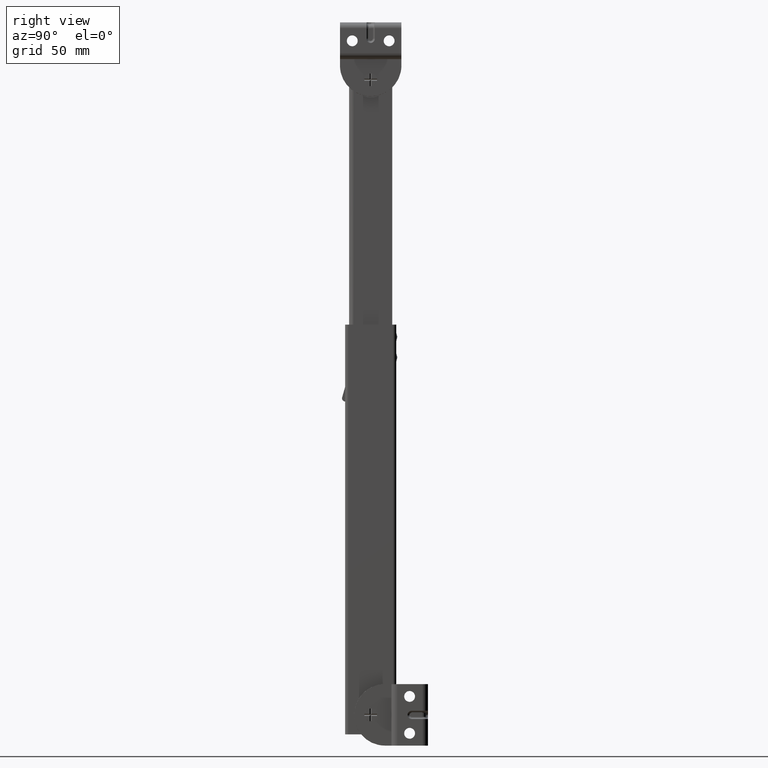
[diagram: clean part render]
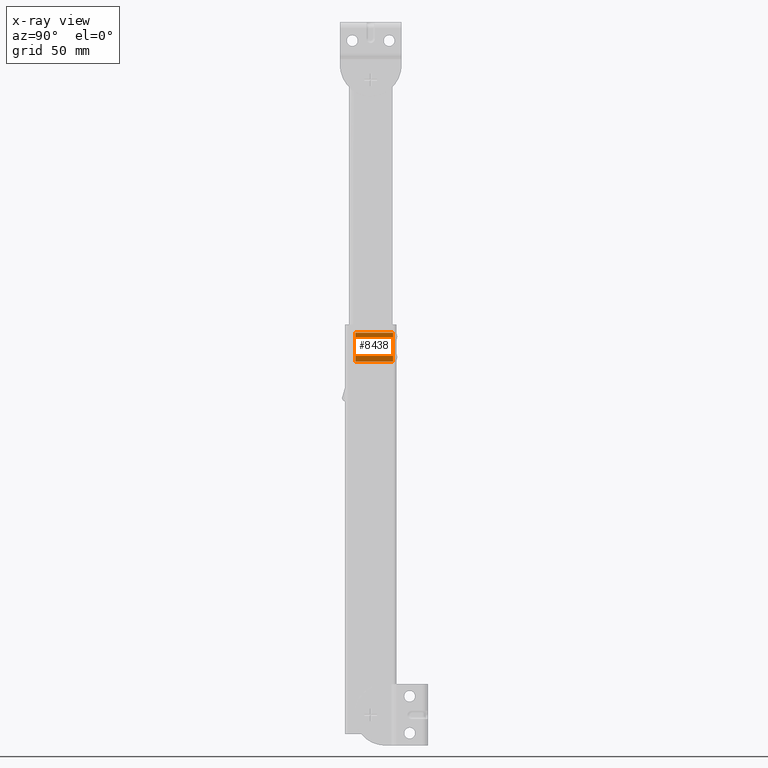
[diagram: x-ray — body ghosted, one internal face saturated and labeled with its STEP entity id]
A machine part, right view, then the same camera in x-ray: the body is ghosted and one INTERNAL B-rep face — a face not visible from any outside direction — is saturated and labeled: STEP entity #8438.
In plain terms, the highlighted face is a freeform B-spline surface patch.
Its self-contained STEP definition (entity closure, byte-faithful):
#7771=CARTESIAN_POINT('',(4.699997000000201,10.899999999999860,173.751673734262990));
#7772=VERTEX_POINT('',#7771);
#7788=CARTESIAN_POINT('',(4.699997000000201,10.900002000000001,175.248326265736490));
#7789=VERTEX_POINT('',#7788);
#7972=CARTESIAN_POINT('',(4.699997000000201,10.899999999999860,185.248326265737010));
#7973=VERTEX_POINT('',#7972);
#8076=CARTESIAN_POINT('',(4.699997000000201,10.899999999999860,183.751673734263510));
#8077=VERTEX_POINT('',#8076);
#8205=CARTESIAN_POINT('',(4.699997000000201,10.899999999999860,173.751673734262990));
#8206=CARTESIAN_POINT('',(4.699997000000201,10.900002000000001,175.248326265736490));
#8207=QUASI_UNIFORM_CURVE('',1,(#8205,#8206),.UNSPECIFIED.,.F.,.U.);
#8208=EDGE_CURVE('',#7772,#7789,#8207,.T.);
#8325=CARTESIAN_POINT('',(4.699997000000201,10.899999999999860,183.751673734263510));
#8326=CARTESIAN_POINT('',(4.699997000000201,10.899999999999860,185.248326265737010));
#8327=QUASI_UNIFORM_CURVE('',1,(#8325,#8326),.UNSPECIFIED.,.F.,.U.);
#8328=EDGE_CURVE('',#8077,#7973,#8327,.T.);
#8340=CARTESIAN_POINT('',(4.699997000000201,-7.400002000000000,186.500000004198510));
#8341=VERTEX_POINT('',#8340);
#8356=CARTESIAN_POINT('',(4.699997000000201,10.900002000000001,186.500000004198510));
#8357=VERTEX_POINT('',#8356);
#8363=CARTESIAN_POINT('',(4.699997000000201,10.900002000000001,186.500000004198510));
#8364=CARTESIAN_POINT('',(4.699997000000201,-7.400002000000000,186.500000004198510));
#8365=QUASI_UNIFORM_CURVE('',1,(#8363,#8364),.UNSPECIFIED.,.F.,.U.);
#8366=EDGE_CURVE('',#8357,#8341,#8365,.T.);
#8376=CARTESIAN_POINT('',(4.699997000000201,-7.400002000000000,172.499999995801490));
#8377=VERTEX_POINT('',#8376);
#8385=CARTESIAN_POINT('',(4.699997000000201,10.900002000000001,172.499999995801490));
#8386=VERTEX_POINT('',#8385);
#8387=CARTESIAN_POINT('',(4.699997000000201,10.900002000000001,172.499999995801490));
#8388=CARTESIAN_POINT('',(4.699997000000201,-7.400002000000000,172.499999995801490));
#8389=QUASI_UNIFORM_CURVE('',1,(#8387,#8388),.UNSPECIFIED.,.F.,.U.);
#8390=EDGE_CURVE('',#8386,#8377,#8389,.T.);
#8407=CARTESIAN_POINT('',(4.699997000000201,11.814086648969010,171.800700022516790));
#8408=CARTESIAN_POINT('',(4.699997000000201,11.814086648969010,187.199300352992510));
#8409=CARTESIAN_POINT('',(4.699997000000201,-8.314087630657726,171.800700022516790));
#8410=CARTESIAN_POINT('',(4.699997000000201,-8.314087630657726,187.199300352992510));
#8411=B_SPLINE_SURFACE_WITH_KNOTS('',1,1,((#8407,#8409),(#8408,#8410)),.UNSPECIFIED.,.F.,.F.,.U.,(2,2),(2,2),(0.0,15.398600330475711),(0.0,20.128174279626741),.UNSPECIFIED.);
#8412=ORIENTED_EDGE('',*,*,#8366,.F.);
#8413=CARTESIAN_POINT('',(4.699997000000201,10.899999999999860,185.248326265737010));
#8414=CARTESIAN_POINT('',(4.699997000000201,10.900002000000001,186.500000004198510));
#8415=QUASI_UNIFORM_CURVE('',1,(#8413,#8414),.UNSPECIFIED.,.F.,.U.);
#8416=EDGE_CURVE('',#7973,#8357,#8415,.T.);
#8417=ORIENTED_EDGE('',*,*,#8416,.F.);
#8418=ORIENTED_EDGE('',*,*,#8328,.F.);
#8419=CARTESIAN_POINT('',(4.699997000000201,10.900002000000001,175.248326265736490));
#8420=CARTESIAN_POINT('',(4.699997000000201,10.899999999999860,183.751673734263510));
#8421=QUASI_UNIFORM_CURVE('',1,(#8419,#8420),.UNSPECIFIED.,.F.,.U.);
#8422=EDGE_CURVE('',#7789,#8077,#8421,.T.);
#8423=ORIENTED_EDGE('',*,*,#8422,.F.);
#8424=ORIENTED_EDGE('',*,*,#8208,.F.);
#8425=CARTESIAN_POINT('',(4.699997000000201,10.900002000000001,172.499999995801490));
#8426=CARTESIAN_POINT('',(4.699997000000201,10.899999999999860,173.751673734262990));
#8427=QUASI_UNIFORM_CURVE('',1,(#8425,#8426),.UNSPECIFIED.,.F.,.U.);
#8428=EDGE_CURVE('',#8386,#7772,#8427,.T.);
#8429=ORIENTED_EDGE('',*,*,#8428,.F.);
#8430=ORIENTED_EDGE('',*,*,#8390,.T.);
#8431=CARTESIAN_POINT('',(4.699997000000201,-7.400002000000000,172.499999995801490));
#8432=CARTESIAN_POINT('',(4.699997000000201,-7.400002000000000,186.500000004198510));
#8433=QUASI_UNIFORM_CURVE('',1,(#8431,#8432),.UNSPECIFIED.,.F.,.U.);
#8434=EDGE_CURVE('',#8377,#8341,#8433,.T.);
#8435=ORIENTED_EDGE('',*,*,#8434,.T.);
#8436=EDGE_LOOP('',(#8412,#8417,#8418,#8423,#8424,#8429,#8430,#8435));
#8437=FACE_OUTER_BOUND('',#8436,.T.);
#8438=ADVANCED_FACE('',(#8437),#8411,.F.);